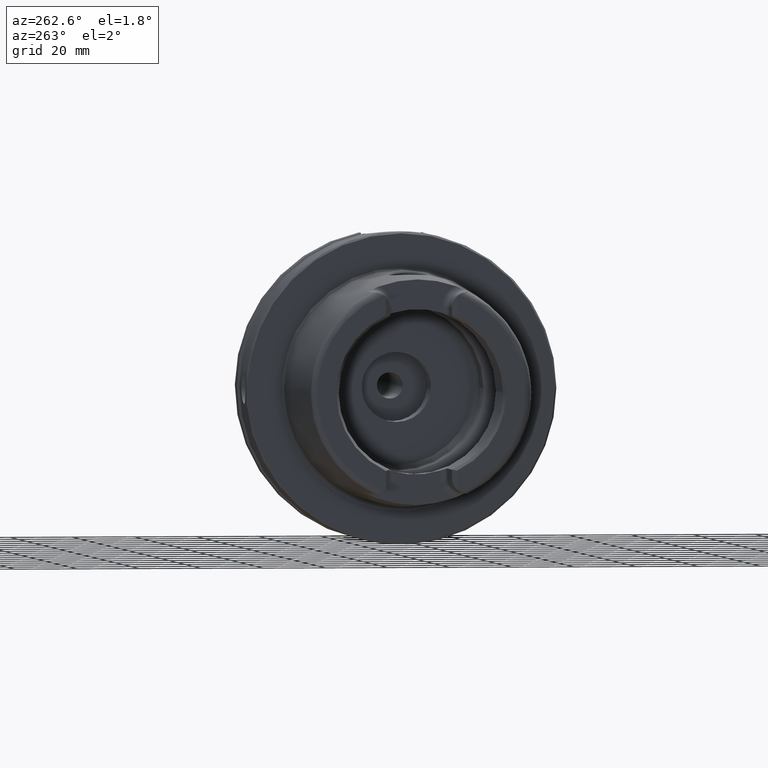
[diagram: clean part render]
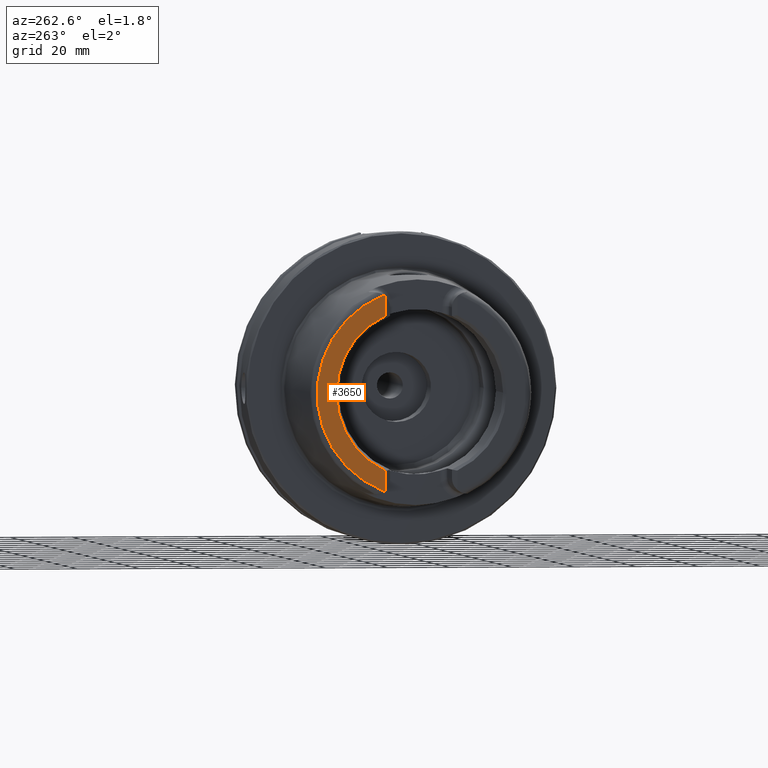
[diagram: same view with one face highlighted and labeled with its STEP entity id]
A machine part, auxiliary view. The second image highlights one B-rep face of the part: STEP entity #3650.
In plain terms, the highlighted planar face has unit normal (-1, 0, 0).
Its self-contained STEP definition (entity closure, byte-faithful):
#734=PLANE('',#4150);
#930=FACE_OUTER_BOUND('',#1124,.T.);
#1124=EDGE_LOOP('',(#3173,#3174,#3175,#3176,#3177,#3178));
#1249=LINE('',#5672,#1439);
#1261=LINE('',#5783,#1451);
#1439=VECTOR('',#4563,10.);
#1451=VECTOR('',#4623,10.);
#1622=CIRCLE('',#3992,4.88);
#1633=CIRCLE('',#4017,4.88);
#1697=CIRCLE('',#4142,27.3660254037844);
#1698=CIRCLE('',#4146,33.6001839277785);
#1866=VERTEX_POINT('',#5665);
#1869=VERTEX_POINT('',#5670);
#1872=VERTEX_POINT('',#5680);
#1893=VERTEX_POINT('',#5780);
#1894=VERTEX_POINT('',#5782);
#1899=VERTEX_POINT('',#5801);
#2197=EDGE_CURVE('',#1869,#1866,#1249,.T.);
#2201=EDGE_CURVE('',#1872,#1866,#1622,.T.);
#2228=EDGE_CURVE('',#1893,#1894,#1261,.T.);
#2235=EDGE_CURVE('',#1893,#1899,#1633,.T.);
#2423=EDGE_CURVE('',#1894,#1869,#1697,.T.);
#2425=EDGE_CURVE('',#1872,#1899,#1698,.T.);
#3173=ORIENTED_EDGE('',*,*,#2197,.F.);
#3174=ORIENTED_EDGE('',*,*,#2423,.F.);
#3175=ORIENTED_EDGE('',*,*,#2228,.F.);
#3176=ORIENTED_EDGE('',*,*,#2235,.T.);
#3177=ORIENTED_EDGE('',*,*,#2425,.F.);
#3178=ORIENTED_EDGE('',*,*,#2201,.T.);
#3650=ADVANCED_FACE('',(#930),#734,.T.);
#3992=AXIS2_PLACEMENT_3D('',#5681,#4571,#4572);
#4017=AXIS2_PLACEMENT_3D('',#5814,#4632,#4633);
#4142=AXIS2_PLACEMENT_3D('',#6997,#4944,#4945);
#4146=AXIS2_PLACEMENT_3D('',#7002,#4953,#4954);
#4150=AXIS2_PLACEMENT_3D('',#7009,#4962,#4963);
#4563=DIRECTION('',(0.,0.,-1.));
#4571=DIRECTION('center_axis',(-1.,0.,0.));
#4572=DIRECTION('ref_axis',(0.,-0.477884921181368,0.878422450821629));
#4623=DIRECTION('',(0.,0.,-1.));
#4632=DIRECTION('center_axis',(-1.,0.,0.));
#4633=DIRECTION('ref_axis',(0.,1.,0.));
#4944=DIRECTION('center_axis',(-1.,0.,0.));
#4945=DIRECTION('ref_axis',(0.,-1.,0.));
#4953=DIRECTION('center_axis',(1.,0.,0.));
#4954=DIRECTION('ref_axis',(0.,0.,-1.));
#4962=DIRECTION('center_axis',(-1.,0.,0.));
#4963=DIRECTION('ref_axis',(0.,0.,1.));
#5665=CARTESIAN_POINT('',(-50.,11.51,-30.8899431813596));
#5670=CARTESIAN_POINT('',(-50.,11.51,-24.8277918148307));
#5672=CARTESIAN_POINT('',(-50.,11.51,-10.));
#5680=CARTESIAN_POINT('',(-50.,12.0743049948301,-31.355757348091));
#5681=CARTESIAN_POINT('Origin',(-50.,14.89,-27.37));
#5780=CARTESIAN_POINT('',(-50.,11.51,30.8899431813596));
#5782=CARTESIAN_POINT('',(-50.,11.51,24.8277918148307));
#5783=CARTESIAN_POINT('',(-50.,11.51,13.685));
#5801=CARTESIAN_POINT('',(-50.,12.0743049948301,31.355757348091));
#5814=CARTESIAN_POINT('Origin',(-50.,14.89,27.37));
#6997=CARTESIAN_POINT('Origin',(-50.,0.,0.));
#7002=CARTESIAN_POINT('Origin',(-50.,0.,0.));
#7009=CARTESIAN_POINT('Origin',(-50.,33.6001839277785,0.));